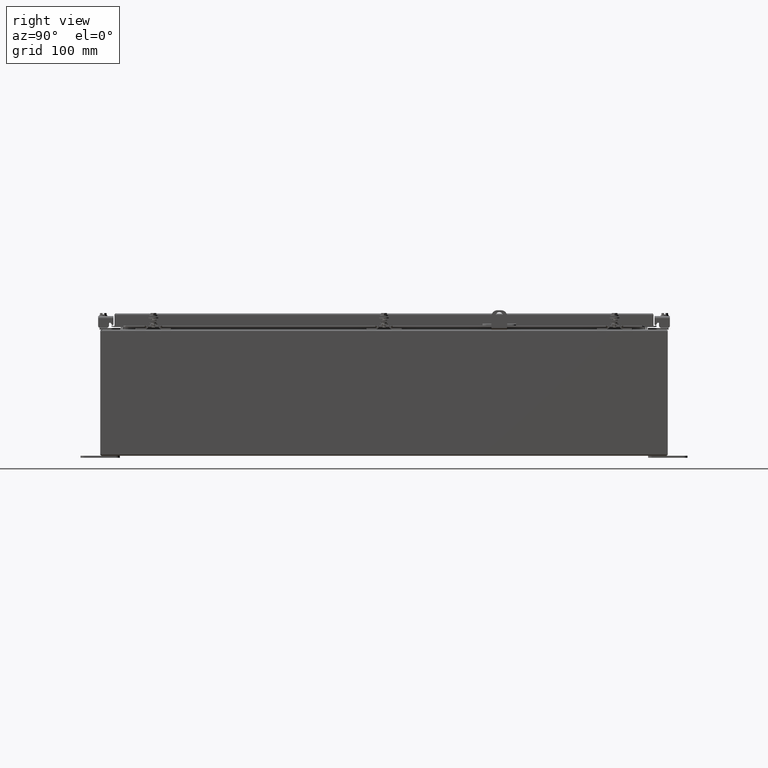
[diagram: clean part render]
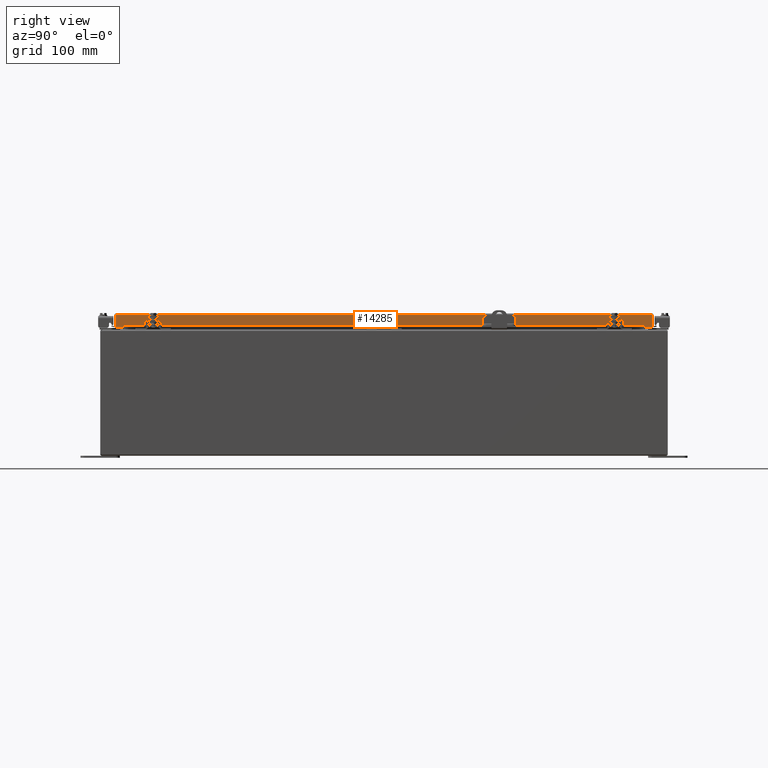
[diagram: same view with one face highlighted and labeled with its STEP entity id]
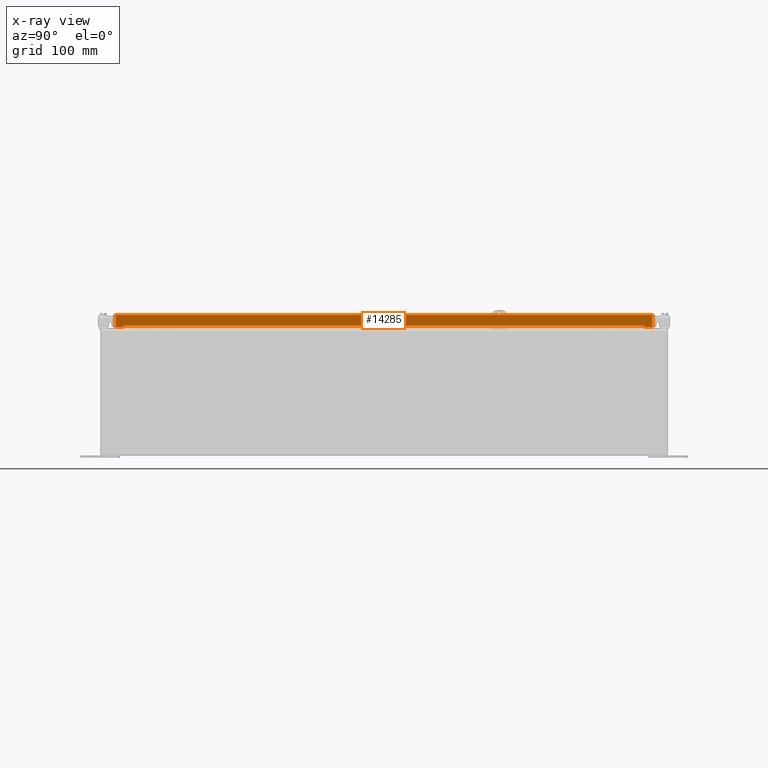
[diagram: x-ray of the same camera — body ghosted, the highlighted face saturated]
A machine part, right view. The second image highlights one B-rep face of the part: STEP entity #14285.
The next image is the same camera in x-ray: the body ghosted, the highlighted face saturated — about 0% of this face is hidden behind the body in this view.
In plain terms, the highlighted planar face has unit normal (-1, -0, -0).
Its self-contained STEP definition (entity closure, byte-faithful):
#1425=PLANE('',#15155);
#2013=FACE_OUTER_BOUND('',#2823,.T.);
#2823=EDGE_LOOP('',(#11151,#11152,#11153,#11154,#11155,#11156,#11157,#11158,
#11159,#11160,#11161,#11162));
#3736=LINE('',#23230,#5045);
#3779=LINE('',#23332,#5088);
#3782=LINE('',#23340,#5091);
#3785=LINE('',#23344,#5094);
#3795=LINE('',#23365,#5104);
#3797=LINE('',#23369,#5106);
#3799=LINE('',#23372,#5108);
#3800=LINE('',#23375,#5109);
#3801=LINE('',#23377,#5110);
#3802=LINE('',#23379,#5111);
#3803=LINE('',#23381,#5112);
#3804=LINE('',#23382,#5113);
#5045=VECTOR('',#17082,33.0380857864376);
#5088=VECTOR('',#17183,0.000199999999999981);
#5091=VECTOR('',#17188,0.10545);
#5094=VECTOR('',#17193,0.00020000000000138);
#5104=VECTOR('',#17207,0.10545);
#5106=VECTOR('',#17211,0.000199999999999981);
#5108=VECTOR('',#17215,0.00020000000000138);
#5109=VECTOR('',#17218,0.4998);
#5110=VECTOR('',#17219,0.76975);
#5111=VECTOR('',#17220,34.0380857864376);
#5112=VECTOR('',#17221,0.76975);
#5113=VECTOR('',#17222,0.4998);
#6823=VERTEX_POINT('',#23221);
#6824=VERTEX_POINT('',#23225);
#6854=VERTEX_POINT('',#23330);
#6857=VERTEX_POINT('',#23337);
#6858=VERTEX_POINT('',#23339);
#6866=VERTEX_POINT('',#23362);
#6867=VERTEX_POINT('',#23364);
#6868=VERTEX_POINT('',#23368);
#6869=VERTEX_POINT('',#23374);
#6870=VERTEX_POINT('',#23376);
#6871=VERTEX_POINT('',#23378);
#6872=VERTEX_POINT('',#23380);
#8390=EDGE_CURVE('',#6823,#6824,#3736,.T.);
#8441=EDGE_CURVE('',#6824,#6854,#3779,.T.);
#8444=EDGE_CURVE('',#6858,#6857,#3782,.T.);
#8447=EDGE_CURVE('',#6854,#6858,#3785,.T.);
#8457=EDGE_CURVE('',#6867,#6866,#3795,.T.);
#8459=EDGE_CURVE('',#6868,#6823,#3797,.T.);
#8461=EDGE_CURVE('',#6866,#6868,#3799,.T.);
#8462=EDGE_CURVE('',#6869,#6857,#3800,.T.);
#8463=EDGE_CURVE('',#6870,#6869,#3801,.T.);
#8464=EDGE_CURVE('',#6870,#6871,#3802,.T.);
#8465=EDGE_CURVE('',#6872,#6871,#3803,.T.);
#8466=EDGE_CURVE('',#6867,#6872,#3804,.T.);
#11151=ORIENTED_EDGE('',*,*,#8444,.T.);
#11152=ORIENTED_EDGE('',*,*,#8462,.F.);
#11153=ORIENTED_EDGE('',*,*,#8463,.F.);
#11154=ORIENTED_EDGE('',*,*,#8464,.T.);
#11155=ORIENTED_EDGE('',*,*,#8465,.F.);
#11156=ORIENTED_EDGE('',*,*,#8466,.F.);
#11157=ORIENTED_EDGE('',*,*,#8457,.T.);
#11158=ORIENTED_EDGE('',*,*,#8461,.T.);
#11159=ORIENTED_EDGE('',*,*,#8459,.T.);
#11160=ORIENTED_EDGE('',*,*,#8390,.T.);
#11161=ORIENTED_EDGE('',*,*,#8441,.T.);
#11162=ORIENTED_EDGE('',*,*,#8447,.T.);
#14285=ADVANCED_FACE('',(#2013),#1425,.F.);
#15155=AXIS2_PLACEMENT_3D('',#23373,#17216,#17217);
#17082=DIRECTION('',(8.18945160077599E-17,-1.,1.31262594925981E-32));
#17183=DIRECTION('',(-5.77982693178142E-15,0.,-1.));
#17188=DIRECTION('',(5.77982693178142E-15,0.,1.));
#17193=DIRECTION('',(8.18945160077599E-17,-1.,-4.83726203779253E-31));
#17207=DIRECTION('',(-5.77982693178142E-15,0.,-1.));
#17211=DIRECTION('',(5.77982693178142E-15,0.,1.));
#17215=DIRECTION('',(8.18945160077599E-17,-1.,-4.83726203779253E-31));
#17216=DIRECTION('center_axis',(-1.,-8.18945160077599E-17,5.77982693178142E-15));
#17217=DIRECTION('ref_axis',(4.51194637207664E-15,-8.18255896310694E-17,
1.));
#17218=DIRECTION('',(-8.182558963107E-17,1.,-3.59183128002904E-19));
#17219=DIRECTION('',(5.39030285815812E-15,4.43734259186819E-31,1.));
#17220=DIRECTION('',(-8.18945160077599E-17,1.,3.71534045274011E-34));
#17221=DIRECTION('',(-5.39030285815812E-15,-4.43734259186819E-31,-1.));
#17222=DIRECTION('',(-8.182558963107E-17,1.,-3.59183128002904E-19));
#23221=CARTESIAN_POINT('',(11.1875,16.5190428932188,0.769749999999998));
#23225=CARTESIAN_POINT('',(11.1875,-16.5190428932188,0.769749999999998));
#23230=CARTESIAN_POINT('',(11.1875,-8.25952144660941,0.769749999999998));
#23330=CARTESIAN_POINT('',(11.1875,-16.5190428932188,0.769549999999998));
#23332=CARTESIAN_POINT('',(11.1875,-16.5190428932188,0.613353054271132));
#23337=CARTESIAN_POINT('',(11.1875,-16.5192428932188,0.874999999999999));
#23339=CARTESIAN_POINT('',(11.1875,-16.5192428932188,0.769549999999998));
#23340=CARTESIAN_POINT('',(11.1875,-16.5192428932188,0.666078054271132));
#23344=CARTESIAN_POINT('',(11.1875,-8.25962144660941,0.769549999999998));
#23362=CARTESIAN_POINT('',(11.1875,16.5192428932188,0.769549999999998));
#23364=CARTESIAN_POINT('',(11.1875,16.5192428932188,0.874999999999999));
#23365=CARTESIAN_POINT('',(11.1875,16.5192428932188,0.613353054271132));
#23368=CARTESIAN_POINT('',(11.1875,16.5190428932188,0.769549999999998));
#23369=CARTESIAN_POINT('',(11.1875,16.5190428932188,0.666078054271132));
#23372=CARTESIAN_POINT('',(11.1875,8.25952144660941,0.769549999999998));
#23373=CARTESIAN_POINT('Origin',(11.1875,-2.87883490973289E-16,0.457156108542266));
#23374=CARTESIAN_POINT('',(11.1875,-17.0190428932188,0.874999999999999));
#23375=CARTESIAN_POINT('',(11.1875,-17.0190428932188,0.874999999999999));
#23376=CARTESIAN_POINT('',(11.1875,-17.0190428932188,0.105249999999998));
#23377=CARTESIAN_POINT('',(11.1875,-17.0190428932188,0.105249999999998));
#23378=CARTESIAN_POINT('',(11.1875,17.0190428932188,0.105249999999998));
#23379=CARTESIAN_POINT('',(11.1875,-1.39633506097762E-16,0.105249999999998));
#23380=CARTESIAN_POINT('',(11.1875,17.0190428932188,0.874999999999999));
#23381=CARTESIAN_POINT('',(11.1875,17.0190428932188,0.105249999999998));
#23382=CARTESIAN_POINT('',(11.1875,-17.0190428932188,0.874999999999999));